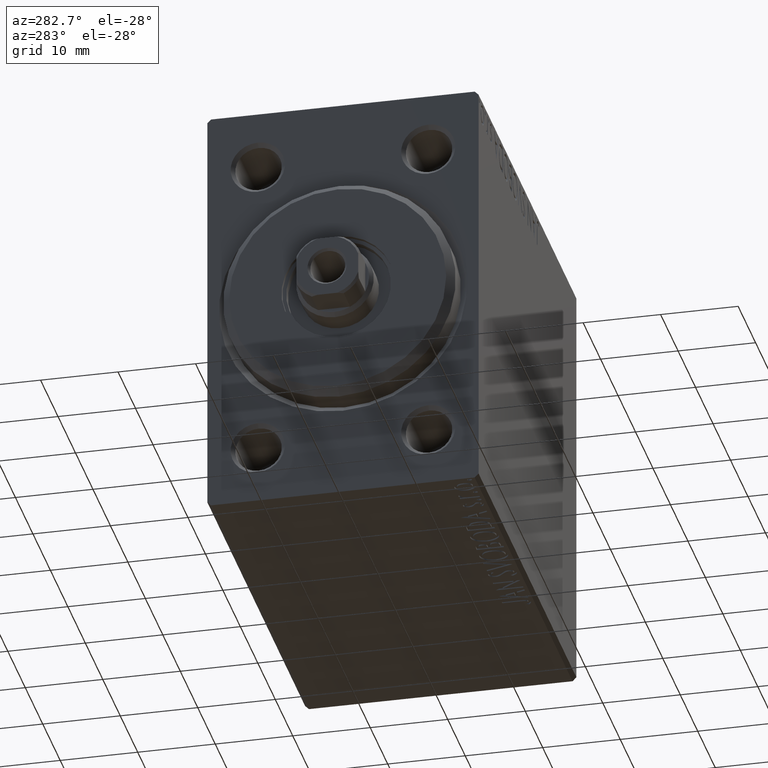
[diagram: clean part render]
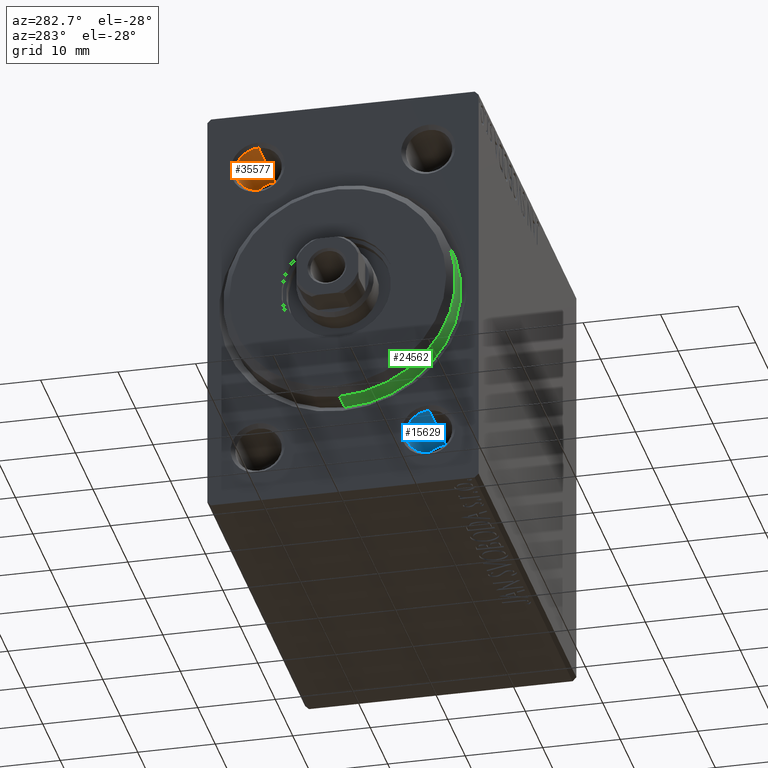
[diagram: same view with three faces highlighted in distinct colors, each labeled with its STEP entity id]
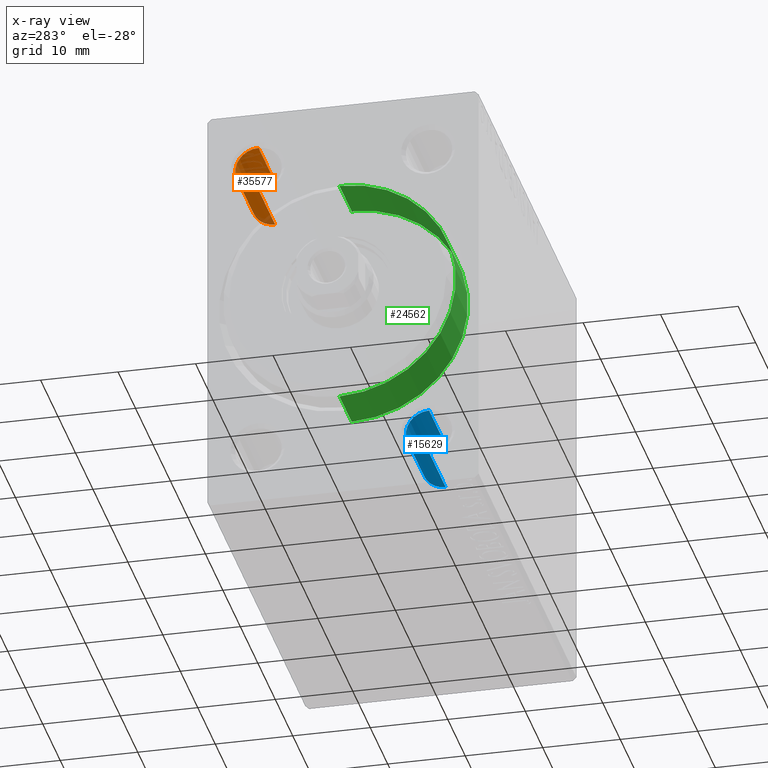
[diagram: x-ray of the same camera — body ghosted, the three highlighted faces saturated]
A machine part, auxiliary view with three faces highlighted in distinct colors.
The next image is the same camera in x-ray (body ghosted, the three faces saturated) — at least one of them is partly hidden behind the body in this view.
Their STEP definitions:

[orange] entity #35577 — the highlighted cylindrical surface (edge-blend (fillet) strip) has radius 3 mm, axis along (-1, -0, -0).
#472 = ORIENTED_EDGE ( 'NONE', *, *, #42391, .T. ) ;
#1347 = EDGE_CURVE ( 'NONE', #2597, #13367, #42147, .T. ) ;
#2597 = VERTEX_POINT ( 'NONE', #14994 ) ;
#3036 = AXIS2_PLACEMENT_3D ( 'NONE', #11951, #8382, #22041 ) ;
#3871 = DIRECTION ( 'NONE',  ( -1.000000000000000000, -0.000000000000000000, -0.000000000000000000 ) ) ;
#4853 = DIRECTION ( 'NONE',  ( -1.000000000000000000, -0.000000000000000000, -0.000000000000000000 ) ) ;
#5668 = CARTESIAN_POINT ( 'NONE',  ( 9.999999999999994671, 11.00000000000000178, 22.99999999999999645 ) ) ;
#8382 = DIRECTION ( 'NONE',  ( -1.000000000000000000, 0.000000000000000000, 0.000000000000000000 ) ) ;
#9015 = VERTEX_POINT ( 'NONE', #10768 ) ;
#9863 = DIRECTION ( 'NONE',  ( -1.000000000000000000, -0.000000000000000000, -0.000000000000000000 ) ) ;
#9974 = ORIENTED_EDGE ( 'NONE', *, *, #16842, .T. ) ;
#10768 = CARTESIAN_POINT ( 'NONE',  ( 0.5000000000000095479, 11.00000000000000178, 22.99999999999999645 ) ) ;
#11951 = CARTESIAN_POINT ( 'NONE',  ( 0.5000000000000095479, 11.00000000000000178, 20.00000000000000711 ) ) ;
#13367 = VERTEX_POINT ( 'NONE', #41518 ) ;
#13519 = LINE ( 'NONE', #27648, #24962 ) ;
#14679 = ORIENTED_EDGE ( 'NONE', *, *, #17911, .F. ) ;
#14994 = CARTESIAN_POINT ( 'NONE',  ( 9.999999999999994671, 11.00000000000000178, 17.00000000000001776 ) ) ;
#16153 = VERTEX_POINT ( 'NONE', #5668 ) ;
#16842 = EDGE_CURVE ( 'NONE', #9015, #13367, #34571, .T. ) ;
#17104 = ORIENTED_EDGE ( 'NONE', *, *, #1347, .F. ) ;
#17911 = EDGE_CURVE ( 'NONE', #16153, #2597, #20254, .T. ) ;
#18504 = DIRECTION ( 'NONE',  ( 0.000000000000000000, 0.000000000000000000, 1.000000000000000000 ) ) ;
#20254 = CIRCLE ( 'NONE', #23868, 2.999999999999988898 ) ;
#21726 = CARTESIAN_POINT ( 'NONE',  ( 0.000000000000000000, 11.00000000000000178, 17.00000000000001776 ) ) ;
#22041 = DIRECTION ( 'NONE',  ( 0.000000000000000000, 0.000000000000000000, -1.000000000000000000 ) ) ;
#22643 = AXIS2_PLACEMENT_3D ( 'NONE', #35780, #4853, #18504 ) ;
#23868 = AXIS2_PLACEMENT_3D ( 'NONE', #30699, #9863, #34284 ) ;
#24962 = VECTOR ( 'NONE', #3871, 1000.000000000000000 ) ;
#25476 = CYLINDRICAL_SURFACE ( 'NONE', #22643, 2.999999999999988898 ) ;
#27648 = CARTESIAN_POINT ( 'NONE',  ( 0.000000000000000000, 11.00000000000000178, 22.99999999999999645 ) ) ;
#30699 = CARTESIAN_POINT ( 'NONE',  ( 9.999999999999994671, 11.00000000000000178, 20.00000000000000711 ) ) ;
#30744 = EDGE_LOOP ( 'NONE', ( #17104, #14679, #472, #9974 ) ) ;
#34284 = DIRECTION ( 'NONE',  ( 0.000000000000000000, 0.000000000000000000, 1.000000000000000000 ) ) ;
#34571 = CIRCLE ( 'NONE', #3036, 2.999999999999988898 ) ;
#35407 = DIRECTION ( 'NONE',  ( -1.000000000000000000, -0.000000000000000000, -0.000000000000000000 ) ) ;
#35558 = FACE_OUTER_BOUND ( 'NONE', #30744, .T. ) ;
#35577 = ADVANCED_FACE ( 'NONE', ( #35558 ), #25476, .F. ) ;
#35780 = CARTESIAN_POINT ( 'NONE',  ( 0.000000000000000000, 11.00000000000000178, 20.00000000000000711 ) ) ;
#39946 = VECTOR ( 'NONE', #35407, 1000.000000000000000 ) ;
#41518 = CARTESIAN_POINT ( 'NONE',  ( 0.5000000000000095479, 11.00000000000000178, 17.00000000000001776 ) ) ;
#42147 = LINE ( 'NONE', #21726, #39946 ) ;
#42391 = EDGE_CURVE ( 'NONE', #16153, #9015, #13519, .T. ) ;

[blue] entity #15629 — the highlighted cylindrical surface (edge-blend (fillet) strip) has radius 3 mm, axis along (-1, -0, -0).
#828 = ORIENTED_EDGE ( 'NONE', *, *, #24169, .T. ) ;
#1013 = CARTESIAN_POINT ( 'NONE',  ( 0.5000000000000095479, -11.00000000000000533, -20.00000000000000000 ) ) ;
#4152 = VECTOR ( 'NONE', #19763, 1000.000000000000000 ) ;
#4154 = ORIENTED_EDGE ( 'NONE', *, *, #40868, .T. ) ;
#4517 = CARTESIAN_POINT ( 'NONE',  ( 9.999999999999994671, -11.00000000000000533, -17.00000000000001066 ) ) ;
#4663 = EDGE_LOOP ( 'NONE', ( #10060, #13866, #4154, #828 ) ) ;
#5891 = LINE ( 'NONE', #15519, #4152 ) ;
#10060 = ORIENTED_EDGE ( 'NONE', *, *, #41436, .F. ) ;
#12054 = CARTESIAN_POINT ( 'NONE',  ( 0.000000000000000000, -11.00000000000000533, -20.00000000000000000 ) ) ;
#12154 = VERTEX_POINT ( 'NONE', #19011 ) ;
#13795 = DIRECTION ( 'NONE',  ( 0.000000000000000000, 0.000000000000000000, 1.000000000000000000 ) ) ;
#13866 = ORIENTED_EDGE ( 'NONE', *, *, #30516, .F. ) ;
#14226 = CARTESIAN_POINT ( 'NONE',  ( 9.999999999999994671, -11.00000000000000533, -20.00000000000000000 ) ) ;
#15405 = FACE_OUTER_BOUND ( 'NONE', #4663, .T. ) ;
#15519 = CARTESIAN_POINT ( 'NONE',  ( 0.000000000000000000, -11.00000000000000533, -17.00000000000001066 ) ) ;
#15557 = DIRECTION ( 'NONE',  ( -1.000000000000000000, 0.000000000000000000, 0.000000000000000000 ) ) ;
#15629 = ADVANCED_FACE ( 'NONE', ( #15405 ), #36268, .F. ) ;
#17068 = VERTEX_POINT ( 'NONE', #4517 ) ;
#19011 = CARTESIAN_POINT ( 'NONE',  ( 0.5000000000000095479, -11.00000000000000533, -17.00000000000001066 ) ) ;
#19763 = DIRECTION ( 'NONE',  ( -1.000000000000000000, -0.000000000000000000, -0.000000000000000000 ) ) ;
#21206 = CIRCLE ( 'NONE', #26927, 2.999999999999988898 ) ;
#21819 = DIRECTION ( 'NONE',  ( -1.000000000000000000, -0.000000000000000000, -0.000000000000000000 ) ) ;
#24169 = EDGE_CURVE ( 'NONE', #12154, #40224, #41812, .T. ) ;
#26927 = AXIS2_PLACEMENT_3D ( 'NONE', #14226, #34200, #13795 ) ;
#28131 = LINE ( 'NONE', #42457, #40000 ) ;
#28463 = CARTESIAN_POINT ( 'NONE',  ( 9.999999999999994671, -11.00000000000000533, -22.99999999999998934 ) ) ;
#30208 = AXIS2_PLACEMENT_3D ( 'NONE', #12054, #39638, #44099 ) ;
#30516 = EDGE_CURVE ( 'NONE', #17068, #42758, #21206, .T. ) ;
#34200 = DIRECTION ( 'NONE',  ( -1.000000000000000000, -0.000000000000000000, -0.000000000000000000 ) ) ;
#36268 = CYLINDRICAL_SURFACE ( 'NONE', #30208, 2.999999999999988898 ) ;
#39638 = DIRECTION ( 'NONE',  ( -1.000000000000000000, -0.000000000000000000, -0.000000000000000000 ) ) ;
#40000 = VECTOR ( 'NONE', #21819, 1000.000000000000000 ) ;
#40224 = VERTEX_POINT ( 'NONE', #43656 ) ;
#40868 = EDGE_CURVE ( 'NONE', #17068, #12154, #5891, .T. ) ;
#41436 = EDGE_CURVE ( 'NONE', #42758, #40224, #28131, .T. ) ;
#41812 = CIRCLE ( 'NONE', #42536, 2.999999999999988898 ) ;
#42269 = DIRECTION ( 'NONE',  ( 0.000000000000000000, 0.000000000000000000, -1.000000000000000000 ) ) ;
#42457 = CARTESIAN_POINT ( 'NONE',  ( 0.000000000000000000, -11.00000000000000533, -22.99999999999998934 ) ) ;
#42536 = AXIS2_PLACEMENT_3D ( 'NONE', #1013, #15557, #42269 ) ;
#42758 = VERTEX_POINT ( 'NONE', #28463 ) ;
#43656 = CARTESIAN_POINT ( 'NONE',  ( 0.5000000000000095479, -11.00000000000000533, -22.99999999999998934 ) ) ;
#44099 = DIRECTION ( 'NONE',  ( 0.000000000000000000, 0.000000000000000000, 1.000000000000000000 ) ) ;

[green] entity #24562 — the highlighted cylindrical surface (partial cylindrical patch) has radius 15 mm, axis along (1, -0, -0).
#65 = EDGE_CURVE ( 'NONE', #29584, #38804, #40633, .T. ) ;
#1028 = ORIENTED_EDGE ( 'NONE', *, *, #65, .F. ) ;
#1326 = DIRECTION ( 'NONE',  ( -1.000000000000000000, -0.000000000000000000, -0.000000000000000000 ) ) ;
#4856 = DIRECTION ( 'NONE',  ( -1.000000000000000000, 0.000000000000000000, 0.000000000000000000 ) ) ;
#5062 = AXIS2_PLACEMENT_3D ( 'NONE', #36011, #4856, #28841 ) ;
#8020 = EDGE_CURVE ( 'NONE', #16432, #11340, #27980, .T. ) ;
#8076 = CARTESIAN_POINT ( 'NONE',  ( 3.000000000000000000, 1.836970198721029589E-15, -15.00000000000000000 ) ) ;
#8804 = FACE_OUTER_BOUND ( 'NONE', #39554, .T. ) ;
#10025 = LINE ( 'NONE', #40742, #23457 ) ;
#10383 = CARTESIAN_POINT ( 'NONE',  ( -5.000000000000000000, 0.000000000000000000, 0.000000000000000000 ) ) ;
#11340 = VERTEX_POINT ( 'NONE', #23676 ) ;
#11900 = CARTESIAN_POINT ( 'NONE',  ( -5.000000000000000000, 0.000000000000000000, 15.00000000000000000 ) ) ;
#14262 = CARTESIAN_POINT ( 'NONE',  ( 1.999999999999995781, 0.000000000000000000, 15.00000000000000000 ) ) ;
#15283 = AXIS2_PLACEMENT_3D ( 'NONE', #26505, #36147, #23130 ) ;
#16432 = VERTEX_POINT ( 'NONE', #14262 ) ;
#19747 = CYLINDRICAL_SURFACE ( 'NONE', #15283, 15.00000000000000000 ) ;
#21407 = ORIENTED_EDGE ( 'NONE', *, *, #39607, .F. ) ;
#21725 = ORIENTED_EDGE ( 'NONE', *, *, #43619, .T. ) ;
#23130 = DIRECTION ( 'NONE',  ( 0.000000000000000000, 0.000000000000000000, 1.000000000000000000 ) ) ;
#23457 = VECTOR ( 'NONE', #30640, 1000.000000000000000 ) ;
#23676 = CARTESIAN_POINT ( 'NONE',  ( 1.999999999999995781, 1.836970198721029589E-15, -15.00000000000000000 ) ) ;
#24059 = DIRECTION ( 'NONE',  ( -1.000000000000000000, 0.000000000000000000, 0.000000000000000000 ) ) ;
#24562 = ADVANCED_FACE ( 'NONE', ( #8804 ), #19747, .T. ) ;
#26505 = CARTESIAN_POINT ( 'NONE',  ( 3.000000000000000000, 0.000000000000000000, 0.000000000000000000 ) ) ;
#27980 = CIRCLE ( 'NONE', #5062, 15.00000000000000000 ) ;
#28841 = DIRECTION ( 'NONE',  ( 0.000000000000000000, 0.000000000000000000, -1.000000000000000000 ) ) ;
#29584 = VERTEX_POINT ( 'NONE', #11900 ) ;
#30640 = DIRECTION ( 'NONE',  ( -1.000000000000000000, -0.000000000000000000, -0.000000000000000000 ) ) ;
#30959 = ORIENTED_EDGE ( 'NONE', *, *, #8020, .T. ) ;
#34762 = LINE ( 'NONE', #8076, #39406 ) ;
#36011 = CARTESIAN_POINT ( 'NONE',  ( 1.999999999999995781, 0.000000000000000000, 0.000000000000000000 ) ) ;
#36147 = DIRECTION ( 'NONE',  ( -1.000000000000000000, -0.000000000000000000, -0.000000000000000000 ) ) ;
#36687 = CARTESIAN_POINT ( 'NONE',  ( -5.000000000000000000, 1.836970198721029589E-15, -15.00000000000000000 ) ) ;
#37728 = DIRECTION ( 'NONE',  ( 0.000000000000000000, 0.000000000000000000, 1.000000000000000000 ) ) ;
#37777 = AXIS2_PLACEMENT_3D ( 'NONE', #10383, #24059, #37728 ) ;
#38804 = VERTEX_POINT ( 'NONE', #36687 ) ;
#39406 = VECTOR ( 'NONE', #1326, 1000.000000000000000 ) ;
#39554 = EDGE_LOOP ( 'NONE', ( #30959, #21725, #1028, #21407 ) ) ;
#39607 = EDGE_CURVE ( 'NONE', #16432, #29584, #10025, .T. ) ;
#40633 = CIRCLE ( 'NONE', #37777, 15.00000000000000000 ) ;
#40742 = CARTESIAN_POINT ( 'NONE',  ( 3.000000000000000000, 0.000000000000000000, 15.00000000000000000 ) ) ;
#43619 = EDGE_CURVE ( 'NONE', #11340, #38804, #34762, .T. ) ;